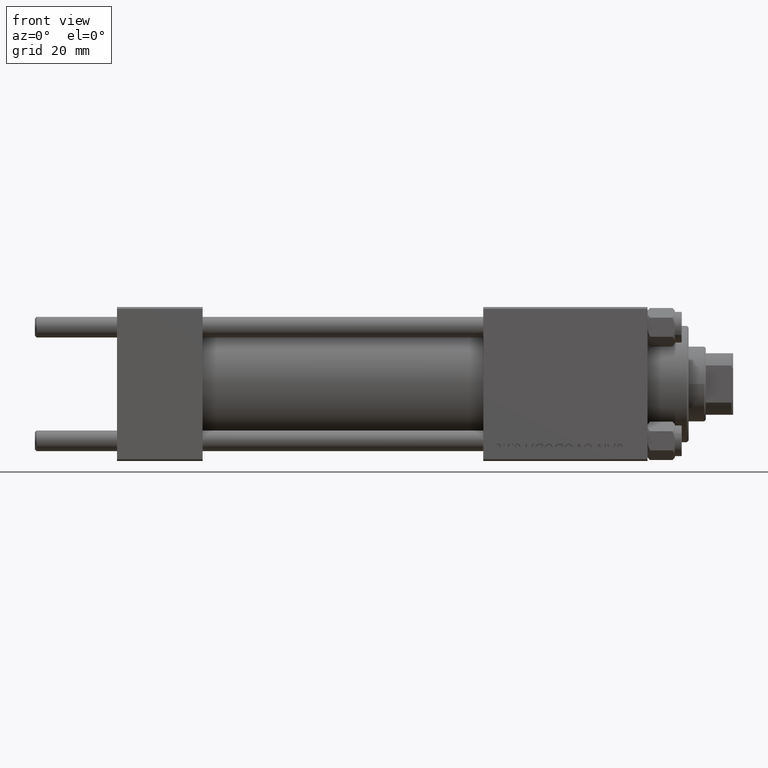
[diagram: clean part render]
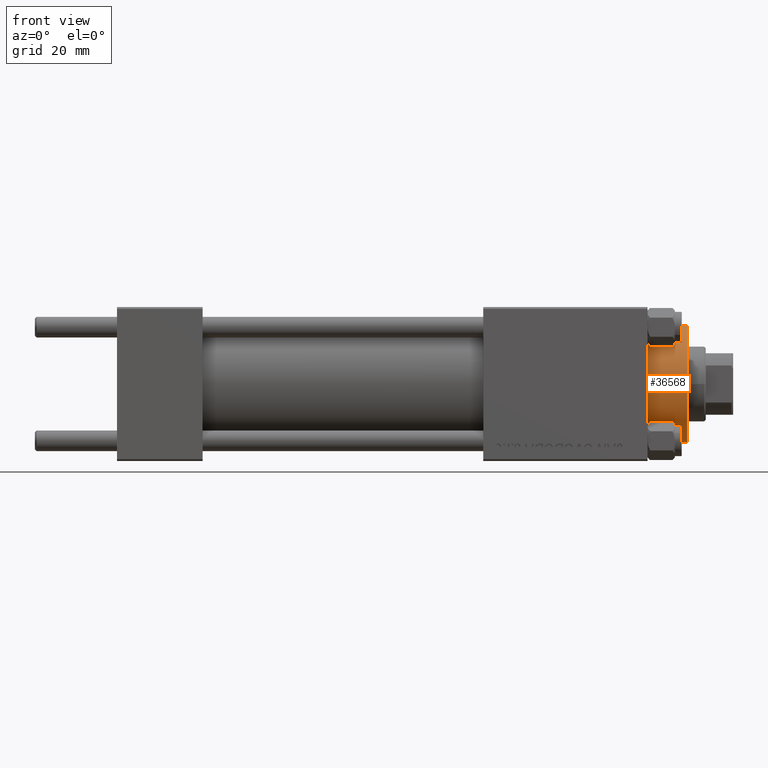
[diagram: same view with one face highlighted and labeled with its STEP entity id]
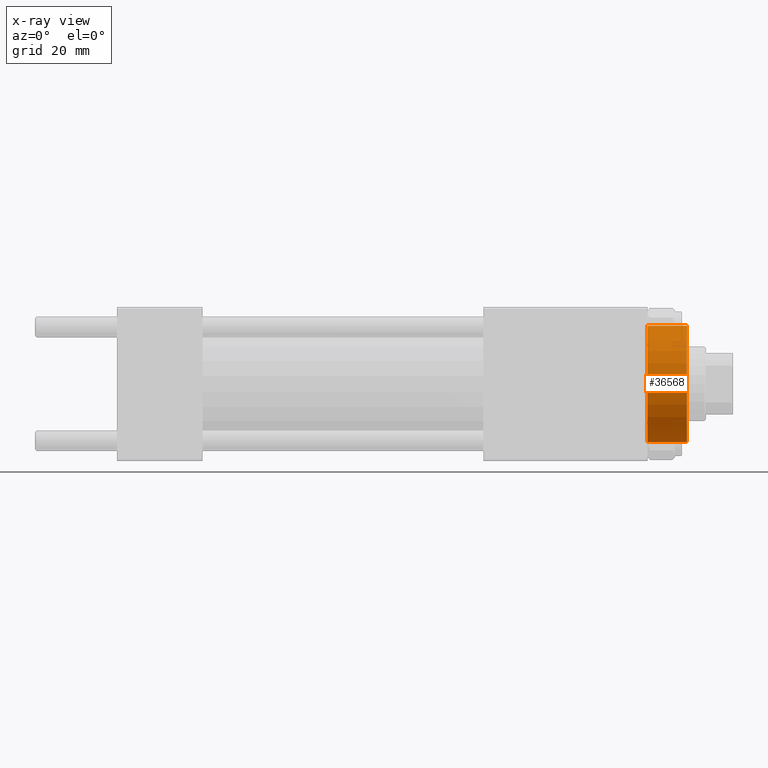
[diagram: x-ray of the same camera — body ghosted, the highlighted face saturated]
A machine part, front view. The second image highlights one B-rep face of the part: STEP entity #36568.
The next image is the same camera in x-ray: the body ghosted, the highlighted face saturated — about 0% of this face is hidden behind the body in this view.
In plain terms, the highlighted cylindrical surface (partial cylindrical patch) has radius 17 mm, axis along (-1, -0, 0).
Its self-contained STEP definition (entity closure, byte-faithful):
#1121 = DIRECTION ( 'NONE',  ( -0.000000000000000000, -0.000000000000000000, -1.000000000000000000 ) ) ;
#2407 = CYLINDRICAL_SURFACE ( 'NONE', #33515, 17.00000000000000000 ) ;
#5554 = CARTESIAN_POINT ( 'NONE',  ( -17.00000000000000000, 0.000000000000000000, 40.70000000000000284 ) ) ;
#5939 = CARTESIAN_POINT ( 'NONE',  ( 0.000000000000000000, 0.000000000000000000, 40.70000000000000284 ) ) ;
#6206 = VERTEX_POINT ( 'NONE', #33077 ) ;
#6461 = EDGE_CURVE ( 'NONE', #47573, #32807, #8210, .T. ) ;
#7431 = VECTOR ( 'NONE', #47901, 1000.000000000000000 ) ;
#7625 = EDGE_CURVE ( 'NONE', #32807, #34228, #40093, .T. ) ;
#8210 = CIRCLE ( 'NONE', #26732, 17.00000000000000000 ) ;
#8817 = CARTESIAN_POINT ( 'NONE',  ( 0.000000000000000000, 0.000000000000000000, 28.69999999999999929 ) ) ;
#10066 = ORIENTED_EDGE ( 'NONE', *, *, #6461, .T. ) ;
#11259 = CARTESIAN_POINT ( 'NONE',  ( -17.00000000000000000, 0.000000000000000000, 40.19999999999999574 ) ) ;
#12838 = ORIENTED_EDGE ( 'NONE', *, *, #49789, .F. ) ;
#13628 = CARTESIAN_POINT ( 'NONE',  ( 0.000000000000000000, 0.000000000000000000, 40.19999999999999574 ) ) ;
#14168 = CIRCLE ( 'NONE', #33491, 17.00000000000000000 ) ;
#19620 = EDGE_CURVE ( 'NONE', #34228, #6206, #14168, .T. ) ;
#20585 = DIRECTION ( 'NONE',  ( -1.000000000000000000, 0.000000000000000000, 0.000000000000000000 ) ) ;
#23110 = CARTESIAN_POINT ( 'NONE',  ( 17.00000000000000000, 2.081899558550500280E-15, 40.19999999999999574 ) ) ;
#24004 = CARTESIAN_POINT ( 'NONE',  ( -17.00000000000000000, 0.000000000000000000, 28.69999999999999929 ) ) ;
#26732 = AXIS2_PLACEMENT_3D ( 'NONE', #13628, #29001, #44376 ) ;
#27117 = CARTESIAN_POINT ( 'NONE',  ( 17.00000000000000000, 2.081899558550500280E-15, 40.70000000000000284 ) ) ;
#28398 = DIRECTION ( 'NONE',  ( -0.000000000000000000, -0.000000000000000000, -1.000000000000000000 ) ) ;
#28517 = EDGE_LOOP ( 'NONE', ( #12838, #10066, #30741, #30448 ) ) ;
#28904 = FACE_OUTER_BOUND ( 'NONE', #28517, .T. ) ;
#29001 = DIRECTION ( 'NONE',  ( 0.000000000000000000, 0.000000000000000000, -1.000000000000000000 ) ) ;
#30448 = ORIENTED_EDGE ( 'NONE', *, *, #19620, .T. ) ;
#30741 = ORIENTED_EDGE ( 'NONE', *, *, #7625, .T. ) ;
#31637 = LINE ( 'NONE', #27117, #32176 ) ;
#32004 = DIRECTION ( 'NONE',  ( 1.000000000000000000, 0.000000000000000000, 0.000000000000000000 ) ) ;
#32176 = VECTOR ( 'NONE', #1121, 1000.000000000000000 ) ;
#32807 = VERTEX_POINT ( 'NONE', #11259 ) ;
#33077 = CARTESIAN_POINT ( 'NONE',  ( 17.00000000000000000, 2.081899558550500280E-15, 28.69999999999999929 ) ) ;
#33491 = AXIS2_PLACEMENT_3D ( 'NONE', #8817, #40071, #32004 ) ;
#33515 = AXIS2_PLACEMENT_3D ( 'NONE', #5939, #28398, #20585 ) ;
#34228 = VERTEX_POINT ( 'NONE', #24004 ) ;
#36568 = ADVANCED_FACE ( 'NONE', ( #28904 ), #2407, .T. ) ;
#40071 = DIRECTION ( 'NONE',  ( 0.000000000000000000, 0.000000000000000000, 1.000000000000000000 ) ) ;
#40093 = LINE ( 'NONE', #5554, #7431 ) ;
#44376 = DIRECTION ( 'NONE',  ( 1.000000000000000000, 0.000000000000000000, 0.000000000000000000 ) ) ;
#47573 = VERTEX_POINT ( 'NONE', #23110 ) ;
#47901 = DIRECTION ( 'NONE',  ( -0.000000000000000000, -0.000000000000000000, -1.000000000000000000 ) ) ;
#49789 = EDGE_CURVE ( 'NONE', #47573, #6206, #31637, .T. ) ;